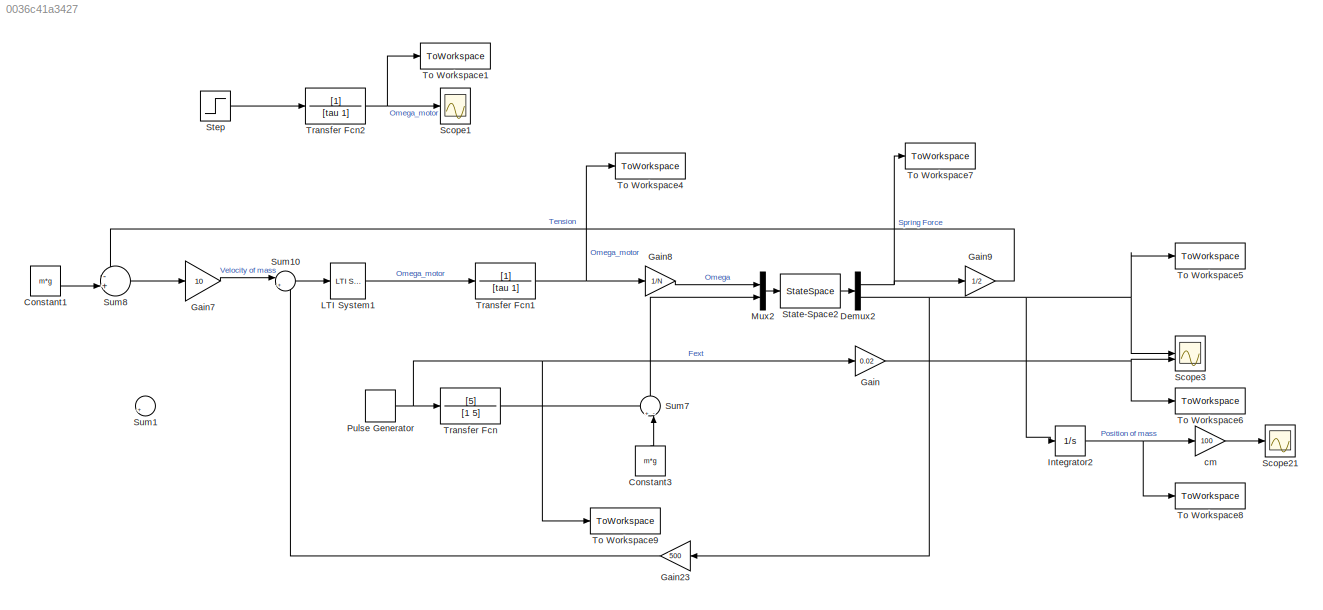
MODEL slx_0036c41a3427
KIND model
CONFIG AbsTol = auto
CONFIG EnableMultiTasking = off
CONFIG FixedStep = auto
CONFIG MaxStep = auto
CONFIG MinStep = auto
CONFIG RelTol = 1e-3
CONFIG SampleTimeConstraint = Unconstrained
CONFIG SolverName = VariableStepAuto
CONFIG StartTime = 0.0
CONFIG StopTime = 10
BLOCK [Constant] Constant1
  Value = m*g
BLOCK [Constant] Constant3
  NameLocation = left
  Value = m*g
BLOCK [Demux] Demux2
  Outputs = 2
BLOCK [Gain] Gain
  Gain = 0.02
BLOCK [Gain] Gain23
  Gain = 500
BLOCK [Gain] Gain7
  Gain = 10
BLOCK [Gain] Gain8
  Gain = 1/N
BLOCK [Gain] Gain9
  Gain = 1/2
  NameLocation = top
BLOCK [Integrator] Integrator2
BLOCK [Reference] LTI System1  REF=cstblocks/LTI System
  SourceBlock = cstblocks/LTI System
  SourceType = LTI Block
BLOCK [Mux] Mux2
  DisplayOption = bar
  Inputs = 2
BLOCK [DiscretePulseGenerator] Pulse Generator
  Amplitude = 7.5
  Period = 5
  PulseType = Time based
  PulseWidth = 50
BLOCK [Scope] Scope1
  Floating = off
  NumInputPorts = 1
  ScopeSpecificationString = Simulink.scopes.TimeScopeBlockCfg('CurrentConfiguration', extmgr.ConfigurationSet(extmgr.Configuration('Core','General UI',true),extmgr.Configuration('Core','Source UI',true),extmgr.Configuration('Sources','WiredSimulink',true,'DataLoggingVariableName','ScopeData1'),extmgr.Configuration('Visuals','Time Domain',true,'PlotType','Line','SerializedDisplays',{struct('MinYLimReal','82.62231','MaxYLimRea...<+1627ch>
BLOCK [Scope] Scope21
  Floating = off
  NumInputPorts = 1
  ScopeSpecificationString = Simulink.scopes.TimeScopeBlockCfg('CurrentConfiguration', extmgr.ConfigurationSet(extmgr.Configuration('Core','General UI',true),extmgr.Configuration('Core','Source UI',true),extmgr.Configuration('Sources','WiredSimulink',true,'DataLoggingVariableName','ScopeData1'),extmgr.Configuration('Visuals','Time Domain',true,'SerializedDisplays',{struct('MinYLimReal','-9.37465','MaxYLimReal','84.37182','YLa...<+1443ch>
BLOCK [Scope] Scope3
  Floating = off
  NumInputPorts = 2
  ScopeSpecificationString = Simulink.scopes.TimeScopeBlockCfg('CurrentConfiguration', extmgr.ConfigurationSet(extmgr.Configuration('Core','General UI',true),extmgr.Configuration('Core','Source UI',true),extmgr.Configuration('Sources','WiredSimulink',true),extmgr.Configuration('Visuals','Time Domain',true,'PlotType','Line','SerializedDisplays',{struct('MinYLimReal','-0.02981','MaxYLimReal','0.18019','YLabelReal','','MinYLimMa...<+1584ch>
BLOCK [StateSpace] State-Space2
  A = A
  B = B
  C = C
  D = D
  InitialCondition = [2*m*g 0]
BLOCK [Step] Step
  After = 104
  SampleTime = 0
  Time = 0
BLOCK [Sum] Sum1
  Inputs = |+-
BLOCK [Sum] Sum10
  Inputs = |+-
BLOCK [Sum] Sum7
  Inputs = +-|
  NameLocation = left
BLOCK [Sum] Sum8
  Inputs = -+|
BLOCK [ToWorkspace] To Workspace1
  FixptAsFi = on
  MaxDataPoints = inf
  SampleTime = -1
  SaveFormat = Timeseries
  VariableName = motorvel_test
BLOCK [ToWorkspace] To Workspace4
  FixptAsFi = on
  MaxDataPoints = inf
  SampleTime = -1
  SaveFormat = Timeseries
  VariableName = motorvel
BLOCK [ToWorkspace] To Workspace5
  FixptAsFi = on
  MaxDataPoints = inf
  SampleTime = -1
  SaveFormat = Timeseries
  VariableName = vel
BLOCK [ToWorkspace] To Workspace6
  FixptAsFi = on
  MaxDataPoints = inf
  SampleTime = -1
  SaveFormat = Timeseries
  VariableName = refvel
BLOCK [ToWorkspace] To Workspace7
  FixptAsFi = on
  MaxDataPoints = inf
  SampleTime = -1
  SaveFormat = Timeseries
  VariableName = springforce
BLOCK [ToWorkspace] To Workspace8
  FixptAsFi = on
  MaxDataPoints = inf
  SampleTime = -1
  SaveFormat = Timeseries
  VariableName = position
BLOCK [ToWorkspace] To Workspace9
  FixptAsFi = on
  MaxDataPoints = inf
  SampleTime = -1
  SaveFormat = Timeseries
  VariableName = Fext
BLOCK [TransferFcn] Transfer Fcn
  Denominator = [1 5]
  Numerator = [5]
BLOCK [TransferFcn] Transfer Fcn1
  Denominator = [tau 1]
BLOCK [TransferFcn] Transfer Fcn2
  Denominator = [tau 1]
BLOCK [Gain] cm
  Gain = 100
LINE Constant1:1 -> Sum8:2
LINE Constant3:1 -> Sum7:2
NET Demux2:1 -> Gain9:1, To Workspace7:1
NET Demux2:2 -> Gain23:1, Integrator2:1, Scope3:1, To Workspace5:1
LINE Gain23:1 -> Sum10:2
LINE Gain7:1 -> Sum10:1
LINE Gain8:1 -> Mux2:1
LINE Gain9:1 -> Sum8:1
NET Gain:1 -> Scope3:2, To Workspace6:1
NET Integrator2:1 -> To Workspace8:1, cm:1
LINE LTI System1:1 -> Transfer Fcn1:1
LINE Mux2:1 -> State-Space2:1
NET Pulse Generator:1 -> Gain:1, To Workspace9:1, Transfer Fcn:1
LINE State-Space2:1 -> Demux2:1
LINE Step:1 -> Transfer Fcn2:1
LINE Sum10:1 -> LTI System1:1
LINE Sum7:1 -> Mux2:2
LINE Sum8:1 -> Gain7:1
NET Transfer Fcn1:1 -> Gain8:1, To Workspace4:1
NET Transfer Fcn2:1 -> Scope1:1, To Workspace1:1
LINE Transfer Fcn:1 -> Sum7:1
LINE cm:1 -> Scope21:1
note: NET lines group one-source signal fan-out (src -> all destinations, sorted); 1:1 wires keep LINE
